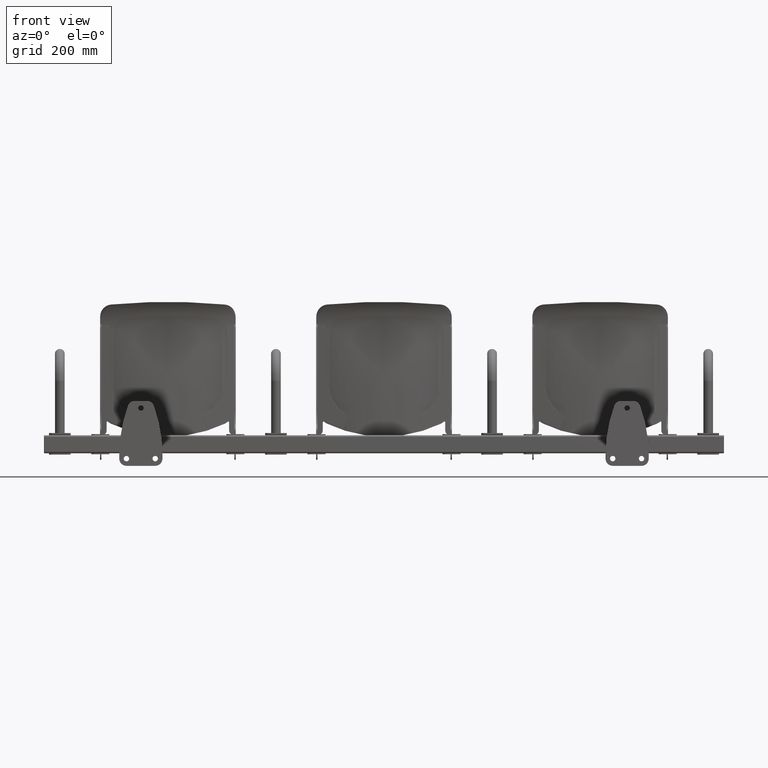
[diagram: clean part render]
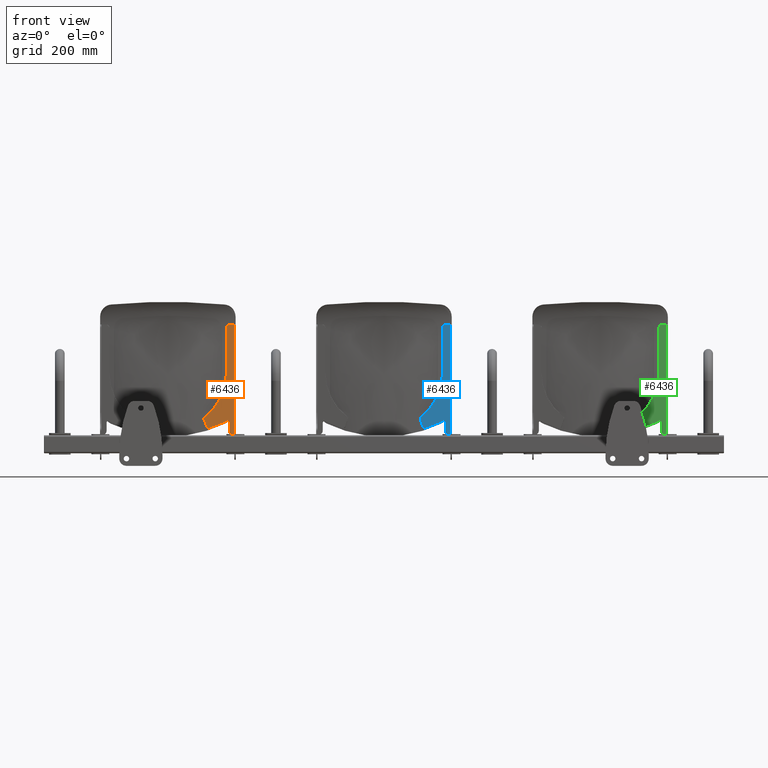
[diagram: same view with three faces highlighted in distinct colors, each labeled with its STEP entity id]
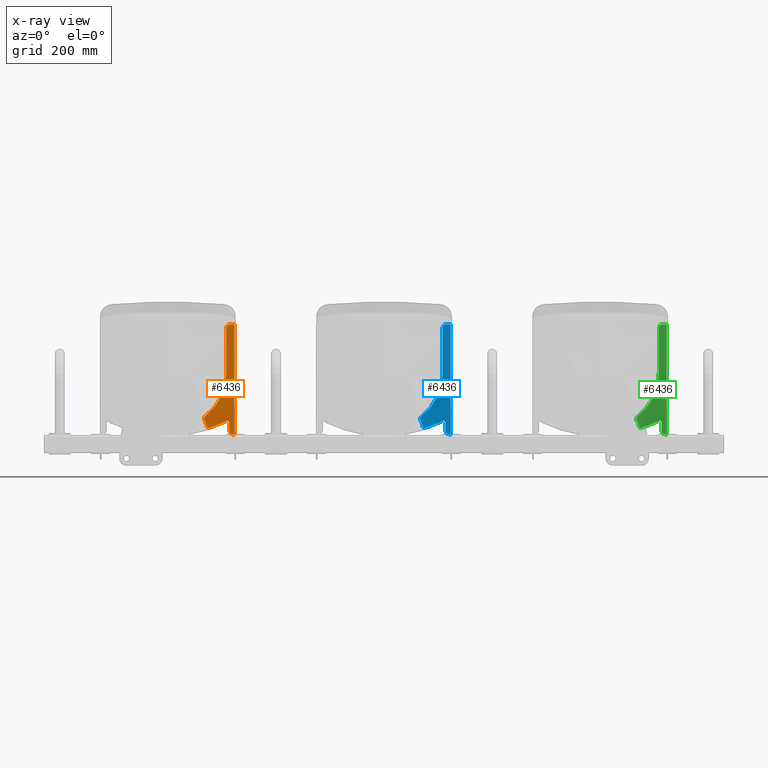
[diagram: x-ray of the same camera — body ghosted, the three highlighted faces saturated]
A machine part, front view with three faces highlighted in distinct colors.
The next image is the same camera in x-ray (body ghosted, the three faces saturated) — at least one of them is partly hidden behind the body in this view.
Their STEP definitions:

[orange] entity #6436 — the highlighted planar face has unit normal (0.0958, -0.9954, 0).
#1328 = CIRCLE ( 'NONE', #16411, 6.000000000000000900 ) ;
#1329 = VECTOR ( 'NONE', #3980, 1000.000000000000000 ) ;
#1330 = LINE ( 'NONE', #3975, #1329 ) ;
#1331 = CIRCLE ( 'NONE', #16412, 76.00311442922111400 ) ;
#1332 = LINE ( 'NONE', #3991, #1338 ) ;
#1333 = LINE ( 'NONE', #3982, #1335 ) ;
#1334 = CIRCLE ( 'NONE', #16413, 6.000000000000000900 ) ;
#1335 = VECTOR ( 'NONE', #3981, 1000.000000000000000 ) ;
#1337 = CIRCLE ( 'NONE', #16414, 10.00000000000000200 ) ;
#1338 = VECTOR ( 'NONE', #3986, 1000.000000000000100 ) ;
#1339 = CIRCLE ( 'NONE', #16415, 8.845926968541688100 ) ;
#1882 = FACE_OUTER_BOUND ( 'NONE', #8939, .T. ) ;
#3043 = PLANE ( 'NONE',  #6840 ) ;
#3044 = CARTESIAN_POINT ( 'NONE',  ( 188.5000000000000000, 17.99999999999997200, 24.00000000000002100 ) ) ;
#3049 = DIRECTION ( 'NONE',  ( 0.09584575252022049800, -0.9953961983671791900, -0.0000000000000000000 ) ) ;
#3050 = DIRECTION ( 'NONE',  ( -0.9953961983671790700, -0.09584575252022048400, 0.0000000000000000000 ) ) ;
#3530 = CARTESIAN_POINT ( 'NONE',  ( 184.5000000000000000, 17.61484380720990100, 24.28409515809885400 ) ) ;
#3531 = CARTESIAN_POINT ( 'NONE',  ( 162.6196988424533700, 15.50801043447423700, 194.4461557886543800 ) ) ;
#3606 = CARTESIAN_POINT ( 'NONE',  ( 103.6808314258597100, 9.832842989089716200, 75.04162505709574300 ) ) ;
#3614 = CARTESIAN_POINT ( 'NONE',  ( 101.1457261246025200, 9.588740112551144900, 64.02176152993709500 ) ) ;
#3632 = CARTESIAN_POINT ( 'NONE',  ( 172.5736608261252300, 16.46646795967645400, 330.0000000000000000 ) ) ;
#3649 = CARTESIAN_POINT ( 'NONE',  ( 107.3372407343402400, 10.18491516122392100, 46.72695777418037000 ) ) ;
#3667 = CARTESIAN_POINT ( 'NONE',  ( 170.5828684293811400, 16.27477645463507400, 34.57884802471576100 ) ) ;
#3671 = CARTESIAN_POINT ( 'NONE',  ( 179.8724822042540600, 17.16926452314029900, 24.60114541509068100 ) ) ;
#3965 = CARTESIAN_POINT ( 'NONE',  ( 129.8152838245827400, 12.34930453572654900, 47.43398999284612200 ) ) ;
#3966 = CARTESIAN_POINT ( 'NONE',  ( 120.2635138761707800, 11.42957369879214400, 44.07372596261146200 ) ) ;
#3969 = CARTESIAN_POINT ( 'NONE',  ( 156.8707370378486100, 14.95444837418486600, 58.88155333963863600 ) ) ;
#3970 = CARTESIAN_POINT ( 'NONE',  ( 115.0096950149533100, 10.92368848124325400, 42.35488176124789600 ) ) ;
#3971 = CARTESIAN_POINT ( 'NONE',  ( 143.5008606733279400, 13.66707570452644700, 52.87726956516083000 ) ) ;
#3972 = CARTESIAN_POINT ( 'NONE',  ( 151.9526490212497000, 14.48089036011484900, 56.60374593299583500 ) ) ;
#3973 = CARTESIAN_POINT ( 'NONE',  ( 156.1380335318006900, 14.88389705097651500, 58.54220238807209900 ) ) ;
#3974 = CARTESIAN_POINT ( 'NONE',  ( 156.1380335318006900, 14.88389705097651500, 58.54220238807209900 ) ) ;
#3975 = CARTESIAN_POINT ( 'NONE',  ( 170.5828684293788300, 16.27477645463485300, 24.00000000000395800 ) ) ;
#3976 = CARTESIAN_POINT ( 'NONE',  ( 158.3153326412890500, 15.09354710987049100, 59.62261421516016900 ) ) ;
#3977 = CARTESIAN_POINT ( 'NONE',  ( 159.9432653440214600, 15.25029920034623200, 60.63089457596554200 ) ) ;
#3978 = CARTESIAN_POINT ( 'NONE',  ( 160.8630157402461400, 15.33886109057801600, 61.27424498524444400 ) ) ;
#3979 = CARTESIAN_POINT ( 'NONE',  ( 161.1214335537769400, 15.36374389588017800, 61.46111508508808900 ) ) ;
#3980 = DIRECTION ( 'NONE',  ( -2.176688216276588300E-013, -2.095912365680630600E-014, -1.000000000000000000 ) ) ;
#3981 = DIRECTION ( 'NONE',  ( -2.750060156608368600E-015, -2.648006749657840600E-016, -1.000000000000000000 ) ) ;
#3982 = CARTESIAN_POINT ( 'NONE',  ( 162.6196988424526400, 15.50801043447417100, 24.00000000000009600 ) ) ;
#3983 = CARTESIAN_POINT ( 'NONE',  ( 164.6104912391828300, 15.69970193951421000, 56.59145301664560200 ) ) ;
#3984 = DIRECTION ( 'NONE',  ( 0.09584575252022049800, -0.9953961983671791900, -0.0000000000000000000 ) ) ;
#3985 = DIRECTION ( 'NONE',  ( -0.9953961983671791900, -0.09584575252022037300, 2.312964634635742300E-015 ) ) ;
#3986 = DIRECTION ( 'NONE',  ( -0.9953961983671790700, -0.09584575252022037300, 0.0000000000000000000 ) ) ;
#3987 = CARTESIAN_POINT ( 'NONE',  ( 33.57478584118886300, 3.082398586848760700, 29.84122683389196600 ) ) ;
#3988 = DIRECTION ( 'NONE',  ( -0.09584575252022049800, 0.9953961983671791900, 0.0000000000000000000 ) ) ;
#3989 = DIRECTION ( 'NONE',  ( -0.9953961983671791900, -0.09584575252022049800, 0.0000000000000000000 ) ) ;
#3991 = CARTESIAN_POINT ( 'NONE',  ( 184.4999999999999400, 17.61484380720982700, 330.0000000000000000 ) ) ;
#3992 = CARTESIAN_POINT ( 'NONE',  ( 113.1603538091479600, 10.74561717674377800, 48.05998716912812800 ) ) ;
#3993 = DIRECTION ( 'NONE',  ( -0.09584575252022049800, 0.9953961983671791900, 0.0000000000000000000 ) ) ;
#3994 = DIRECTION ( 'NONE',  ( -0.9953961983671791900, -0.09584575252022037300, 0.0000000000000000000 ) ) ;
#3995 = CARTESIAN_POINT ( 'NONE',  ( 182.9675193682065500, 17.46728270579328400, 24.39113088401540400 ) ) ;
#3996 = CARTESIAN_POINT ( 'NONE',  ( 181.4249707208374500, 17.31875216473971300, 24.49681722962390400 ) ) ;
#3998 = CARTESIAN_POINT ( 'NONE',  ( 180.5368304130530200, 17.23323397983728700, 34.57884802471357200 ) ) ;
#3999 = DIRECTION ( 'NONE',  ( -0.09584575252022049800, 0.9953961983671791900, 0.0000000000000000000 ) ) ;
#4000 = DIRECTION ( 'NONE',  ( -0.9953961983671793000, -0.09584575252022038700, 0.0000000000000000000 ) ) ;
#4001 = CARTESIAN_POINT ( 'NONE',  ( 179.8724822042540600, 17.16926452314029900, 24.60114541509068100 ) ) ;
#4002 = CARTESIAN_POINT ( 'NONE',  ( 184.5000000000000000, 17.61484380720990100, 24.28409515809885400 ) ) ;
#4005 = CARTESIAN_POINT ( 'NONE',  ( 109.0102407228748100, 10.34600673775440400, 68.00000000000000000 ) ) ;
#4006 = DIRECTION ( 'NONE',  ( 0.09584575252022049800, -0.9953961983671791900, -0.0000000000000000000 ) ) ;
#4007 = DIRECTION ( 'NONE',  ( -0.9953961983671790700, -0.09584575252022055300, 0.0000000000000000000 ) ) ;
#5196 = EDGE_CURVE ( 'NONE', #7212, #7299, #5851, .T. ) ;
#5197 = EDGE_CURVE ( 'NONE', #7299, #7252, #5861, .T. ) ;
#5198 = EDGE_CURVE ( 'NONE', #7208, #13494, #1330, .T. ) ;
#5199 = EDGE_CURVE ( 'NONE', #7208, #7252, #1328, .T. ) ;
#5200 = EDGE_CURVE ( 'NONE', #13441, #13476, #1331, .T. ) ;
#5201 = EDGE_CURVE ( 'NONE', #7267, #13358, #1333, .T. ) ;
#5202 = EDGE_CURVE ( 'NONE', #7212, #13476, #1334, .T. ) ;
#5203 = EDGE_CURVE ( 'NONE', #7255, #13459, #1332, .T. ) ;
#5204 = EDGE_CURVE ( 'NONE', #13498, #13494, #1337, .T. ) ;
#5205 = EDGE_CURVE ( 'NONE', #13498, #13357, #5841, .T. ) ;
#5206 = EDGE_CURVE ( 'NONE', #13433, #13441, #1339, .T. ) ;
#5841 =( BOUNDED_CURVE ( )  B_SPLINE_CURVE ( 3, ( #4001, #3996, #3995, #4002 ),
 .UNSPECIFIED., .F., .T. ) 
 B_SPLINE_CURVE_WITH_KNOTS ( ( 4, 4 ),
 ( 5.321707578490328500, 5.339936677496162100 ),
 .UNSPECIFIED. ) 
 CURVE ( )  GEOMETRIC_REPRESENTATION_ITEM ( )  RATIONAL_B_SPLINE_CURVE ( ( 1.000000000000000000, 0.9999723085208263000, 0.9999723085208263000, 1.000000000000000000 ) ) 
 REPRESENTATION_ITEM ( '' )  );
#5851 = B_SPLINE_CURVE_WITH_KNOTS ( 'NONE', 3,
 ( #3970, #3966, #3965, #3971, #3972, #3973 ),
 .UNSPECIFIED., .F., .F.,
 ( 4, 1, 1, 4 ),
 ( 0.03439965888567477600, 0.08637565307253473900, 0.1295634796088021000, 0.1727513061450694800 ),
 .UNSPECIFIED. ) ;
#5861 = B_SPLINE_CURVE_WITH_KNOTS ( 'NONE', 3,
 ( #3974, #3969, #3976, #3977, #3978, #3979 ),
 .UNSPECIFIED., .F., .F.,
 ( 4, 1, 1, 4 ),
 ( 0.0000000000000000000, 0.09120023808047161800, 0.1824004761609432600, 0.2185380446200216000 ),
 .UNSPECIFIED. ) ;
#5986 = ORIENTED_EDGE ( 'NONE', *, *, #5201, .T. ) ;
#5987 = ORIENTED_EDGE ( 'NONE', *, *, #7802, .T. ) ;
#5988 = ORIENTED_EDGE ( 'NONE', *, *, #5206, .T. ) ;
#5989 = ORIENTED_EDGE ( 'NONE', *, *, #5200, .T. ) ;
#5990 = ORIENTED_EDGE ( 'NONE', *, *, #5202, .F. ) ;
#5991 = ORIENTED_EDGE ( 'NONE', *, *, #5196, .T. ) ;
#5992 = ORIENTED_EDGE ( 'NONE', *, *, #5197, .T. ) ;
#6306 = ORIENTED_EDGE ( 'NONE', *, *, #5199, .F. ) ;
#6308 = ORIENTED_EDGE ( 'NONE', *, *, #5198, .T. ) ;
#6310 = ORIENTED_EDGE ( 'NONE', *, *, #5204, .F. ) ;
#6312 = ORIENTED_EDGE ( 'NONE', *, *, #5205, .T. ) ;
#6313 = ORIENTED_EDGE ( 'NONE', *, *, #7526, .T. ) ;
#6315 = ORIENTED_EDGE ( 'NONE', *, *, #5203, .T. ) ;
#6317 = ORIENTED_EDGE ( 'NONE', *, *, #6895, .F. ) ;
#6436 = ADVANCED_FACE ( 'NONE', ( #1882 ), #3043, .T. ) ;
#6840 = AXIS2_PLACEMENT_3D ( 'NONE', #3044, #3049, #3050 ) ;
#6895 = EDGE_CURVE ( 'NONE', #7267, #13459, #13192, .T. ) ;
#7208 = VERTEX_POINT ( 'NONE', #10487 ) ;
#7212 = VERTEX_POINT ( 'NONE', #10494 ) ;
#7252 = VERTEX_POINT ( 'NONE', #10532 ) ;
#7255 = VERTEX_POINT ( 'NONE', #10535 ) ;
#7267 = VERTEX_POINT ( 'NONE', #10547 ) ;
#7299 = VERTEX_POINT ( 'NONE', #10579 ) ;
#7526 = EDGE_CURVE ( 'NONE', #13357, #7255, #11661, .T. ) ;
#7802 = EDGE_CURVE ( 'NONE', #13358, #13433, #11723, .T. ) ;
#8939 = EDGE_LOOP ( 'NONE', ( #5986, #5987, #5988, #5989, #5990, #5991, #5992, #6306, #6308, #6310, #6312, #6313, #6315, #6317 ) ) ;
#9917 = CARTESIAN_POINT ( 'NONE',  ( 172.5736608261252300, 16.46646795967645000, 320.0000000000000000 ) ) ;
#9919 = DIRECTION ( 'NONE',  ( -0.09584575252022049800, 0.9953961983671791900, 0.0000000000000000000 ) ) ;
#9921 = DIRECTION ( 'NONE',  ( -0.9953961983671790700, -0.09584575252022054000, 0.0000000000000000000 ) ) ;
#10487 = CARTESIAN_POINT ( 'NONE',  ( 170.5828684293859400, 16.27477645463553600, 56.59145301664429400 ) ) ;
#10494 = CARTESIAN_POINT ( 'NONE',  ( 115.0096950149533100, 10.92368848124325400, 42.35488176124789600 ) ) ;
#10532 = CARTESIAN_POINT ( 'NONE',  ( 161.1214335537769400, 15.36374389588017800, 61.46111508508808900 ) ) ;
#10535 = CARTESIAN_POINT ( 'NONE',  ( 184.4999999999999400, 17.61484380720982700, 330.0000000000000000 ) ) ;
#10547 = CARTESIAN_POINT ( 'NONE',  ( 162.6196988424534600, 15.50801043447424900, 320.0000000000000000 ) ) ;
#10579 = CARTESIAN_POINT ( 'NONE',  ( 156.1380335318006900, 14.88389705097651500, 58.54220238807209900 ) ) ;
#10672 = CARTESIAN_POINT ( 'NONE',  ( 184.5000000000000000, 17.61484380720990100, 42.09000911109884400 ) ) ;
#10673 = DIRECTION ( 'NONE',  ( 0.0000000000000000000, 0.0000000000000000000, 1.000000000000000000 ) ) ;
#10772 = CARTESIAN_POINT ( 'NONE',  ( 13.31026908737649200, 1.131147556441169900, 194.4461557886543800 ) ) ;
#10773 = DIRECTION ( 'NONE',  ( -0.09584575252022049800, 0.9953961983671791900, 0.0000000000000000000 ) ) ;
#10774 = DIRECTION ( 'NONE',  ( -0.9953961983671791900, -0.09584575252022049800, 0.0000000000000000000 ) ) ;
#11661 = LINE ( 'NONE', #10672, #11664 ) ;
#11664 = VECTOR ( 'NONE', #10673, 1000.000000000000000 ) ;
#11723 = CIRCLE ( 'NONE', #11985, 150.0000000000000300 ) ;
#11903 = AXIS2_PLACEMENT_3D ( 'NONE', #9917, #9919, #9921 ) ;
#11985 = AXIS2_PLACEMENT_3D ( 'NONE', #10772, #10773, #10774 ) ;
#13192 = CIRCLE ( 'NONE', #11903, 10.00000000000000400 ) ;
#13357 = VERTEX_POINT ( 'NONE', #3530 ) ;
#13358 = VERTEX_POINT ( 'NONE', #3531 ) ;
#13433 = VERTEX_POINT ( 'NONE', #3606 ) ;
#13441 = VERTEX_POINT ( 'NONE', #3614 ) ;
#13459 = VERTEX_POINT ( 'NONE', #3632 ) ;
#13476 = VERTEX_POINT ( 'NONE', #3649 ) ;
#13494 = VERTEX_POINT ( 'NONE', #3667 ) ;
#13498 = VERTEX_POINT ( 'NONE', #3671 ) ;
#16411 = AXIS2_PLACEMENT_3D ( 'NONE', #3983, #3984, #3985 ) ;
#16412 = AXIS2_PLACEMENT_3D ( 'NONE', #3987, #3988, #3989 ) ;
#16413 = AXIS2_PLACEMENT_3D ( 'NONE', #3992, #3993, #3994 ) ;
#16414 = AXIS2_PLACEMENT_3D ( 'NONE', #3998, #3999, #4000 ) ;
#16415 = AXIS2_PLACEMENT_3D ( 'NONE', #4005, #4006, #4007 ) ;

[blue] entity #6436 — the highlighted planar face has unit normal (0.0958, -0.9954, 0).
#1328 = CIRCLE ( 'NONE', #16411, 6.000000000000000900 ) ;
#1329 = VECTOR ( 'NONE', #3980, 1000.000000000000000 ) ;
#1330 = LINE ( 'NONE', #3975, #1329 ) ;
#1331 = CIRCLE ( 'NONE', #16412, 76.00311442922111400 ) ;
#1332 = LINE ( 'NONE', #3991, #1338 ) ;
#1333 = LINE ( 'NONE', #3982, #1335 ) ;
#1334 = CIRCLE ( 'NONE', #16413, 6.000000000000000900 ) ;
#1335 = VECTOR ( 'NONE', #3981, 1000.000000000000000 ) ;
#1337 = CIRCLE ( 'NONE', #16414, 10.00000000000000200 ) ;
#1338 = VECTOR ( 'NONE', #3986, 1000.000000000000100 ) ;
#1339 = CIRCLE ( 'NONE', #16415, 8.845926968541688100 ) ;
#1882 = FACE_OUTER_BOUND ( 'NONE', #8939, .T. ) ;
#3043 = PLANE ( 'NONE',  #6840 ) ;
#3044 = CARTESIAN_POINT ( 'NONE',  ( 188.5000000000000000, 17.99999999999997200, 24.00000000000002100 ) ) ;
#3049 = DIRECTION ( 'NONE',  ( 0.09584575252022049800, -0.9953961983671791900, -0.0000000000000000000 ) ) ;
#3050 = DIRECTION ( 'NONE',  ( -0.9953961983671790700, -0.09584575252022048400, 0.0000000000000000000 ) ) ;
#3530 = CARTESIAN_POINT ( 'NONE',  ( 184.5000000000000000, 17.61484380720990100, 24.28409515809885400 ) ) ;
#3531 = CARTESIAN_POINT ( 'NONE',  ( 162.6196988424533700, 15.50801043447423700, 194.4461557886543800 ) ) ;
#3606 = CARTESIAN_POINT ( 'NONE',  ( 103.6808314258597100, 9.832842989089716200, 75.04162505709574300 ) ) ;
#3614 = CARTESIAN_POINT ( 'NONE',  ( 101.1457261246025200, 9.588740112551144900, 64.02176152993709500 ) ) ;
#3632 = CARTESIAN_POINT ( 'NONE',  ( 172.5736608261252300, 16.46646795967645400, 330.0000000000000000 ) ) ;
#3649 = CARTESIAN_POINT ( 'NONE',  ( 107.3372407343402400, 10.18491516122392100, 46.72695777418037000 ) ) ;
#3667 = CARTESIAN_POINT ( 'NONE',  ( 170.5828684293811400, 16.27477645463507400, 34.57884802471576100 ) ) ;
#3671 = CARTESIAN_POINT ( 'NONE',  ( 179.8724822042540600, 17.16926452314029900, 24.60114541509068100 ) ) ;
#3965 = CARTESIAN_POINT ( 'NONE',  ( 129.8152838245827400, 12.34930453572654900, 47.43398999284612200 ) ) ;
#3966 = CARTESIAN_POINT ( 'NONE',  ( 120.2635138761707800, 11.42957369879214400, 44.07372596261146200 ) ) ;
#3969 = CARTESIAN_POINT ( 'NONE',  ( 156.8707370378486100, 14.95444837418486600, 58.88155333963863600 ) ) ;
#3970 = CARTESIAN_POINT ( 'NONE',  ( 115.0096950149533100, 10.92368848124325400, 42.35488176124789600 ) ) ;
#3971 = CARTESIAN_POINT ( 'NONE',  ( 143.5008606733279400, 13.66707570452644700, 52.87726956516083000 ) ) ;
#3972 = CARTESIAN_POINT ( 'NONE',  ( 151.9526490212497000, 14.48089036011484900, 56.60374593299583500 ) ) ;
#3973 = CARTESIAN_POINT ( 'NONE',  ( 156.1380335318006900, 14.88389705097651500, 58.54220238807209900 ) ) ;
#3974 = CARTESIAN_POINT ( 'NONE',  ( 156.1380335318006900, 14.88389705097651500, 58.54220238807209900 ) ) ;
#3975 = CARTESIAN_POINT ( 'NONE',  ( 170.5828684293788300, 16.27477645463485300, 24.00000000000395800 ) ) ;
#3976 = CARTESIAN_POINT ( 'NONE',  ( 158.3153326412890500, 15.09354710987049100, 59.62261421516016900 ) ) ;
#3977 = CARTESIAN_POINT ( 'NONE',  ( 159.9432653440214600, 15.25029920034623200, 60.63089457596554200 ) ) ;
#3978 = CARTESIAN_POINT ( 'NONE',  ( 160.8630157402461400, 15.33886109057801600, 61.27424498524444400 ) ) ;
#3979 = CARTESIAN_POINT ( 'NONE',  ( 161.1214335537769400, 15.36374389588017800, 61.46111508508808900 ) ) ;
#3980 = DIRECTION ( 'NONE',  ( -2.176688216276588300E-013, -2.095912365680630600E-014, -1.000000000000000000 ) ) ;
#3981 = DIRECTION ( 'NONE',  ( -2.750060156608368600E-015, -2.648006749657840600E-016, -1.000000000000000000 ) ) ;
#3982 = CARTESIAN_POINT ( 'NONE',  ( 162.6196988424526400, 15.50801043447417100, 24.00000000000009600 ) ) ;
#3983 = CARTESIAN_POINT ( 'NONE',  ( 164.6104912391828300, 15.69970193951421000, 56.59145301664560200 ) ) ;
#3984 = DIRECTION ( 'NONE',  ( 0.09584575252022049800, -0.9953961983671791900, -0.0000000000000000000 ) ) ;
#3985 = DIRECTION ( 'NONE',  ( -0.9953961983671791900, -0.09584575252022037300, 2.312964634635742300E-015 ) ) ;
#3986 = DIRECTION ( 'NONE',  ( -0.9953961983671790700, -0.09584575252022037300, 0.0000000000000000000 ) ) ;
#3987 = CARTESIAN_POINT ( 'NONE',  ( 33.57478584118886300, 3.082398586848760700, 29.84122683389196600 ) ) ;
#3988 = DIRECTION ( 'NONE',  ( -0.09584575252022049800, 0.9953961983671791900, 0.0000000000000000000 ) ) ;
#3989 = DIRECTION ( 'NONE',  ( -0.9953961983671791900, -0.09584575252022049800, 0.0000000000000000000 ) ) ;
#3991 = CARTESIAN_POINT ( 'NONE',  ( 184.4999999999999400, 17.61484380720982700, 330.0000000000000000 ) ) ;
#3992 = CARTESIAN_POINT ( 'NONE',  ( 113.1603538091479600, 10.74561717674377800, 48.05998716912812800 ) ) ;
#3993 = DIRECTION ( 'NONE',  ( -0.09584575252022049800, 0.9953961983671791900, 0.0000000000000000000 ) ) ;
#3994 = DIRECTION ( 'NONE',  ( -0.9953961983671791900, -0.09584575252022037300, 0.0000000000000000000 ) ) ;
#3995 = CARTESIAN_POINT ( 'NONE',  ( 182.9675193682065500, 17.46728270579328400, 24.39113088401540400 ) ) ;
#3996 = CARTESIAN_POINT ( 'NONE',  ( 181.4249707208374500, 17.31875216473971300, 24.49681722962390400 ) ) ;
#3998 = CARTESIAN_POINT ( 'NONE',  ( 180.5368304130530200, 17.23323397983728700, 34.57884802471357200 ) ) ;
#3999 = DIRECTION ( 'NONE',  ( -0.09584575252022049800, 0.9953961983671791900, 0.0000000000000000000 ) ) ;
#4000 = DIRECTION ( 'NONE',  ( -0.9953961983671793000, -0.09584575252022038700, 0.0000000000000000000 ) ) ;
#4001 = CARTESIAN_POINT ( 'NONE',  ( 179.8724822042540600, 17.16926452314029900, 24.60114541509068100 ) ) ;
#4002 = CARTESIAN_POINT ( 'NONE',  ( 184.5000000000000000, 17.61484380720990100, 24.28409515809885400 ) ) ;
#4005 = CARTESIAN_POINT ( 'NONE',  ( 109.0102407228748100, 10.34600673775440400, 68.00000000000000000 ) ) ;
#4006 = DIRECTION ( 'NONE',  ( 0.09584575252022049800, -0.9953961983671791900, -0.0000000000000000000 ) ) ;
#4007 = DIRECTION ( 'NONE',  ( -0.9953961983671790700, -0.09584575252022055300, 0.0000000000000000000 ) ) ;
#5196 = EDGE_CURVE ( 'NONE', #7212, #7299, #5851, .T. ) ;
#5197 = EDGE_CURVE ( 'NONE', #7299, #7252, #5861, .T. ) ;
#5198 = EDGE_CURVE ( 'NONE', #7208, #13494, #1330, .T. ) ;
#5199 = EDGE_CURVE ( 'NONE', #7208, #7252, #1328, .T. ) ;
#5200 = EDGE_CURVE ( 'NONE', #13441, #13476, #1331, .T. ) ;
#5201 = EDGE_CURVE ( 'NONE', #7267, #13358, #1333, .T. ) ;
#5202 = EDGE_CURVE ( 'NONE', #7212, #13476, #1334, .T. ) ;
#5203 = EDGE_CURVE ( 'NONE', #7255, #13459, #1332, .T. ) ;
#5204 = EDGE_CURVE ( 'NONE', #13498, #13494, #1337, .T. ) ;
#5205 = EDGE_CURVE ( 'NONE', #13498, #13357, #5841, .T. ) ;
#5206 = EDGE_CURVE ( 'NONE', #13433, #13441, #1339, .T. ) ;
#5841 =( BOUNDED_CURVE ( )  B_SPLINE_CURVE ( 3, ( #4001, #3996, #3995, #4002 ),
 .UNSPECIFIED., .F., .T. ) 
 B_SPLINE_CURVE_WITH_KNOTS ( ( 4, 4 ),
 ( 5.321707578490328500, 5.339936677496162100 ),
 .UNSPECIFIED. ) 
 CURVE ( )  GEOMETRIC_REPRESENTATION_ITEM ( )  RATIONAL_B_SPLINE_CURVE ( ( 1.000000000000000000, 0.9999723085208263000, 0.9999723085208263000, 1.000000000000000000 ) ) 
 REPRESENTATION_ITEM ( '' )  );
#5851 = B_SPLINE_CURVE_WITH_KNOTS ( 'NONE', 3,
 ( #3970, #3966, #3965, #3971, #3972, #3973 ),
 .UNSPECIFIED., .F., .F.,
 ( 4, 1, 1, 4 ),
 ( 0.03439965888567477600, 0.08637565307253473900, 0.1295634796088021000, 0.1727513061450694800 ),
 .UNSPECIFIED. ) ;
#5861 = B_SPLINE_CURVE_WITH_KNOTS ( 'NONE', 3,
 ( #3974, #3969, #3976, #3977, #3978, #3979 ),
 .UNSPECIFIED., .F., .F.,
 ( 4, 1, 1, 4 ),
 ( 0.0000000000000000000, 0.09120023808047161800, 0.1824004761609432600, 0.2185380446200216000 ),
 .UNSPECIFIED. ) ;
#5986 = ORIENTED_EDGE ( 'NONE', *, *, #5201, .T. ) ;
#5987 = ORIENTED_EDGE ( 'NONE', *, *, #7802, .T. ) ;
#5988 = ORIENTED_EDGE ( 'NONE', *, *, #5206, .T. ) ;
#5989 = ORIENTED_EDGE ( 'NONE', *, *, #5200, .T. ) ;
#5990 = ORIENTED_EDGE ( 'NONE', *, *, #5202, .F. ) ;
#5991 = ORIENTED_EDGE ( 'NONE', *, *, #5196, .T. ) ;
#5992 = ORIENTED_EDGE ( 'NONE', *, *, #5197, .T. ) ;
#6306 = ORIENTED_EDGE ( 'NONE', *, *, #5199, .F. ) ;
#6308 = ORIENTED_EDGE ( 'NONE', *, *, #5198, .T. ) ;
#6310 = ORIENTED_EDGE ( 'NONE', *, *, #5204, .F. ) ;
#6312 = ORIENTED_EDGE ( 'NONE', *, *, #5205, .T. ) ;
#6313 = ORIENTED_EDGE ( 'NONE', *, *, #7526, .T. ) ;
#6315 = ORIENTED_EDGE ( 'NONE', *, *, #5203, .T. ) ;
#6317 = ORIENTED_EDGE ( 'NONE', *, *, #6895, .F. ) ;
#6436 = ADVANCED_FACE ( 'NONE', ( #1882 ), #3043, .T. ) ;
#6840 = AXIS2_PLACEMENT_3D ( 'NONE', #3044, #3049, #3050 ) ;
#6895 = EDGE_CURVE ( 'NONE', #7267, #13459, #13192, .T. ) ;
#7208 = VERTEX_POINT ( 'NONE', #10487 ) ;
#7212 = VERTEX_POINT ( 'NONE', #10494 ) ;
#7252 = VERTEX_POINT ( 'NONE', #10532 ) ;
#7255 = VERTEX_POINT ( 'NONE', #10535 ) ;
#7267 = VERTEX_POINT ( 'NONE', #10547 ) ;
#7299 = VERTEX_POINT ( 'NONE', #10579 ) ;
#7526 = EDGE_CURVE ( 'NONE', #13357, #7255, #11661, .T. ) ;
#7802 = EDGE_CURVE ( 'NONE', #13358, #13433, #11723, .T. ) ;
#8939 = EDGE_LOOP ( 'NONE', ( #5986, #5987, #5988, #5989, #5990, #5991, #5992, #6306, #6308, #6310, #6312, #6313, #6315, #6317 ) ) ;
#9917 = CARTESIAN_POINT ( 'NONE',  ( 172.5736608261252300, 16.46646795967645000, 320.0000000000000000 ) ) ;
#9919 = DIRECTION ( 'NONE',  ( -0.09584575252022049800, 0.9953961983671791900, 0.0000000000000000000 ) ) ;
#9921 = DIRECTION ( 'NONE',  ( -0.9953961983671790700, -0.09584575252022054000, 0.0000000000000000000 ) ) ;
#10487 = CARTESIAN_POINT ( 'NONE',  ( 170.5828684293859400, 16.27477645463553600, 56.59145301664429400 ) ) ;
#10494 = CARTESIAN_POINT ( 'NONE',  ( 115.0096950149533100, 10.92368848124325400, 42.35488176124789600 ) ) ;
#10532 = CARTESIAN_POINT ( 'NONE',  ( 161.1214335537769400, 15.36374389588017800, 61.46111508508808900 ) ) ;
#10535 = CARTESIAN_POINT ( 'NONE',  ( 184.4999999999999400, 17.61484380720982700, 330.0000000000000000 ) ) ;
#10547 = CARTESIAN_POINT ( 'NONE',  ( 162.6196988424534600, 15.50801043447424900, 320.0000000000000000 ) ) ;
#10579 = CARTESIAN_POINT ( 'NONE',  ( 156.1380335318006900, 14.88389705097651500, 58.54220238807209900 ) ) ;
#10672 = CARTESIAN_POINT ( 'NONE',  ( 184.5000000000000000, 17.61484380720990100, 42.09000911109884400 ) ) ;
#10673 = DIRECTION ( 'NONE',  ( 0.0000000000000000000, 0.0000000000000000000, 1.000000000000000000 ) ) ;
#10772 = CARTESIAN_POINT ( 'NONE',  ( 13.31026908737649200, 1.131147556441169900, 194.4461557886543800 ) ) ;
#10773 = DIRECTION ( 'NONE',  ( -0.09584575252022049800, 0.9953961983671791900, 0.0000000000000000000 ) ) ;
#10774 = DIRECTION ( 'NONE',  ( -0.9953961983671791900, -0.09584575252022049800, 0.0000000000000000000 ) ) ;
#11661 = LINE ( 'NONE', #10672, #11664 ) ;
#11664 = VECTOR ( 'NONE', #10673, 1000.000000000000000 ) ;
#11723 = CIRCLE ( 'NONE', #11985, 150.0000000000000300 ) ;
#11903 = AXIS2_PLACEMENT_3D ( 'NONE', #9917, #9919, #9921 ) ;
#11985 = AXIS2_PLACEMENT_3D ( 'NONE', #10772, #10773, #10774 ) ;
#13192 = CIRCLE ( 'NONE', #11903, 10.00000000000000400 ) ;
#13357 = VERTEX_POINT ( 'NONE', #3530 ) ;
#13358 = VERTEX_POINT ( 'NONE', #3531 ) ;
#13433 = VERTEX_POINT ( 'NONE', #3606 ) ;
#13441 = VERTEX_POINT ( 'NONE', #3614 ) ;
#13459 = VERTEX_POINT ( 'NONE', #3632 ) ;
#13476 = VERTEX_POINT ( 'NONE', #3649 ) ;
#13494 = VERTEX_POINT ( 'NONE', #3667 ) ;
#13498 = VERTEX_POINT ( 'NONE', #3671 ) ;
#16411 = AXIS2_PLACEMENT_3D ( 'NONE', #3983, #3984, #3985 ) ;
#16412 = AXIS2_PLACEMENT_3D ( 'NONE', #3987, #3988, #3989 ) ;
#16413 = AXIS2_PLACEMENT_3D ( 'NONE', #3992, #3993, #3994 ) ;
#16414 = AXIS2_PLACEMENT_3D ( 'NONE', #3998, #3999, #4000 ) ;
#16415 = AXIS2_PLACEMENT_3D ( 'NONE', #4005, #4006, #4007 ) ;

[green] entity #6436 — the highlighted planar face has unit normal (0.0958, -0.9954, 0).
#1328 = CIRCLE ( 'NONE', #16411, 6.000000000000000900 ) ;
#1329 = VECTOR ( 'NONE', #3980, 1000.000000000000000 ) ;
#1330 = LINE ( 'NONE', #3975, #1329 ) ;
#1331 = CIRCLE ( 'NONE', #16412, 76.00311442922111400 ) ;
#1332 = LINE ( 'NONE', #3991, #1338 ) ;
#1333 = LINE ( 'NONE', #3982, #1335 ) ;
#1334 = CIRCLE ( 'NONE', #16413, 6.000000000000000900 ) ;
#1335 = VECTOR ( 'NONE', #3981, 1000.000000000000000 ) ;
#1337 = CIRCLE ( 'NONE', #16414, 10.00000000000000200 ) ;
#1338 = VECTOR ( 'NONE', #3986, 1000.000000000000100 ) ;
#1339 = CIRCLE ( 'NONE', #16415, 8.845926968541688100 ) ;
#1882 = FACE_OUTER_BOUND ( 'NONE', #8939, .T. ) ;
#3043 = PLANE ( 'NONE',  #6840 ) ;
#3044 = CARTESIAN_POINT ( 'NONE',  ( 188.5000000000000000, 17.99999999999997200, 24.00000000000002100 ) ) ;
#3049 = DIRECTION ( 'NONE',  ( 0.09584575252022049800, -0.9953961983671791900, -0.0000000000000000000 ) ) ;
#3050 = DIRECTION ( 'NONE',  ( -0.9953961983671790700, -0.09584575252022048400, 0.0000000000000000000 ) ) ;
#3530 = CARTESIAN_POINT ( 'NONE',  ( 184.5000000000000000, 17.61484380720990100, 24.28409515809885400 ) ) ;
#3531 = CARTESIAN_POINT ( 'NONE',  ( 162.6196988424533700, 15.50801043447423700, 194.4461557886543800 ) ) ;
#3606 = CARTESIAN_POINT ( 'NONE',  ( 103.6808314258597100, 9.832842989089716200, 75.04162505709574300 ) ) ;
#3614 = CARTESIAN_POINT ( 'NONE',  ( 101.1457261246025200, 9.588740112551144900, 64.02176152993709500 ) ) ;
#3632 = CARTESIAN_POINT ( 'NONE',  ( 172.5736608261252300, 16.46646795967645400, 330.0000000000000000 ) ) ;
#3649 = CARTESIAN_POINT ( 'NONE',  ( 107.3372407343402400, 10.18491516122392100, 46.72695777418037000 ) ) ;
#3667 = CARTESIAN_POINT ( 'NONE',  ( 170.5828684293811400, 16.27477645463507400, 34.57884802471576100 ) ) ;
#3671 = CARTESIAN_POINT ( 'NONE',  ( 179.8724822042540600, 17.16926452314029900, 24.60114541509068100 ) ) ;
#3965 = CARTESIAN_POINT ( 'NONE',  ( 129.8152838245827400, 12.34930453572654900, 47.43398999284612200 ) ) ;
#3966 = CARTESIAN_POINT ( 'NONE',  ( 120.2635138761707800, 11.42957369879214400, 44.07372596261146200 ) ) ;
#3969 = CARTESIAN_POINT ( 'NONE',  ( 156.8707370378486100, 14.95444837418486600, 58.88155333963863600 ) ) ;
#3970 = CARTESIAN_POINT ( 'NONE',  ( 115.0096950149533100, 10.92368848124325400, 42.35488176124789600 ) ) ;
#3971 = CARTESIAN_POINT ( 'NONE',  ( 143.5008606733279400, 13.66707570452644700, 52.87726956516083000 ) ) ;
#3972 = CARTESIAN_POINT ( 'NONE',  ( 151.9526490212497000, 14.48089036011484900, 56.60374593299583500 ) ) ;
#3973 = CARTESIAN_POINT ( 'NONE',  ( 156.1380335318006900, 14.88389705097651500, 58.54220238807209900 ) ) ;
#3974 = CARTESIAN_POINT ( 'NONE',  ( 156.1380335318006900, 14.88389705097651500, 58.54220238807209900 ) ) ;
#3975 = CARTESIAN_POINT ( 'NONE',  ( 170.5828684293788300, 16.27477645463485300, 24.00000000000395800 ) ) ;
#3976 = CARTESIAN_POINT ( 'NONE',  ( 158.3153326412890500, 15.09354710987049100, 59.62261421516016900 ) ) ;
#3977 = CARTESIAN_POINT ( 'NONE',  ( 159.9432653440214600, 15.25029920034623200, 60.63089457596554200 ) ) ;
#3978 = CARTESIAN_POINT ( 'NONE',  ( 160.8630157402461400, 15.33886109057801600, 61.27424498524444400 ) ) ;
#3979 = CARTESIAN_POINT ( 'NONE',  ( 161.1214335537769400, 15.36374389588017800, 61.46111508508808900 ) ) ;
#3980 = DIRECTION ( 'NONE',  ( -2.176688216276588300E-013, -2.095912365680630600E-014, -1.000000000000000000 ) ) ;
#3981 = DIRECTION ( 'NONE',  ( -2.750060156608368600E-015, -2.648006749657840600E-016, -1.000000000000000000 ) ) ;
#3982 = CARTESIAN_POINT ( 'NONE',  ( 162.6196988424526400, 15.50801043447417100, 24.00000000000009600 ) ) ;
#3983 = CARTESIAN_POINT ( 'NONE',  ( 164.6104912391828300, 15.69970193951421000, 56.59145301664560200 ) ) ;
#3984 = DIRECTION ( 'NONE',  ( 0.09584575252022049800, -0.9953961983671791900, -0.0000000000000000000 ) ) ;
#3985 = DIRECTION ( 'NONE',  ( -0.9953961983671791900, -0.09584575252022037300, 2.312964634635742300E-015 ) ) ;
#3986 = DIRECTION ( 'NONE',  ( -0.9953961983671790700, -0.09584575252022037300, 0.0000000000000000000 ) ) ;
#3987 = CARTESIAN_POINT ( 'NONE',  ( 33.57478584118886300, 3.082398586848760700, 29.84122683389196600 ) ) ;
#3988 = DIRECTION ( 'NONE',  ( -0.09584575252022049800, 0.9953961983671791900, 0.0000000000000000000 ) ) ;
#3989 = DIRECTION ( 'NONE',  ( -0.9953961983671791900, -0.09584575252022049800, 0.0000000000000000000 ) ) ;
#3991 = CARTESIAN_POINT ( 'NONE',  ( 184.4999999999999400, 17.61484380720982700, 330.0000000000000000 ) ) ;
#3992 = CARTESIAN_POINT ( 'NONE',  ( 113.1603538091479600, 10.74561717674377800, 48.05998716912812800 ) ) ;
#3993 = DIRECTION ( 'NONE',  ( -0.09584575252022049800, 0.9953961983671791900, 0.0000000000000000000 ) ) ;
#3994 = DIRECTION ( 'NONE',  ( -0.9953961983671791900, -0.09584575252022037300, 0.0000000000000000000 ) ) ;
#3995 = CARTESIAN_POINT ( 'NONE',  ( 182.9675193682065500, 17.46728270579328400, 24.39113088401540400 ) ) ;
#3996 = CARTESIAN_POINT ( 'NONE',  ( 181.4249707208374500, 17.31875216473971300, 24.49681722962390400 ) ) ;
#3998 = CARTESIAN_POINT ( 'NONE',  ( 180.5368304130530200, 17.23323397983728700, 34.57884802471357200 ) ) ;
#3999 = DIRECTION ( 'NONE',  ( -0.09584575252022049800, 0.9953961983671791900, 0.0000000000000000000 ) ) ;
#4000 = DIRECTION ( 'NONE',  ( -0.9953961983671793000, -0.09584575252022038700, 0.0000000000000000000 ) ) ;
#4001 = CARTESIAN_POINT ( 'NONE',  ( 179.8724822042540600, 17.16926452314029900, 24.60114541509068100 ) ) ;
#4002 = CARTESIAN_POINT ( 'NONE',  ( 184.5000000000000000, 17.61484380720990100, 24.28409515809885400 ) ) ;
#4005 = CARTESIAN_POINT ( 'NONE',  ( 109.0102407228748100, 10.34600673775440400, 68.00000000000000000 ) ) ;
#4006 = DIRECTION ( 'NONE',  ( 0.09584575252022049800, -0.9953961983671791900, -0.0000000000000000000 ) ) ;
#4007 = DIRECTION ( 'NONE',  ( -0.9953961983671790700, -0.09584575252022055300, 0.0000000000000000000 ) ) ;
#5196 = EDGE_CURVE ( 'NONE', #7212, #7299, #5851, .T. ) ;
#5197 = EDGE_CURVE ( 'NONE', #7299, #7252, #5861, .T. ) ;
#5198 = EDGE_CURVE ( 'NONE', #7208, #13494, #1330, .T. ) ;
#5199 = EDGE_CURVE ( 'NONE', #7208, #7252, #1328, .T. ) ;
#5200 = EDGE_CURVE ( 'NONE', #13441, #13476, #1331, .T. ) ;
#5201 = EDGE_CURVE ( 'NONE', #7267, #13358, #1333, .T. ) ;
#5202 = EDGE_CURVE ( 'NONE', #7212, #13476, #1334, .T. ) ;
#5203 = EDGE_CURVE ( 'NONE', #7255, #13459, #1332, .T. ) ;
#5204 = EDGE_CURVE ( 'NONE', #13498, #13494, #1337, .T. ) ;
#5205 = EDGE_CURVE ( 'NONE', #13498, #13357, #5841, .T. ) ;
#5206 = EDGE_CURVE ( 'NONE', #13433, #13441, #1339, .T. ) ;
#5841 =( BOUNDED_CURVE ( )  B_SPLINE_CURVE ( 3, ( #4001, #3996, #3995, #4002 ),
 .UNSPECIFIED., .F., .T. ) 
 B_SPLINE_CURVE_WITH_KNOTS ( ( 4, 4 ),
 ( 5.321707578490328500, 5.339936677496162100 ),
 .UNSPECIFIED. ) 
 CURVE ( )  GEOMETRIC_REPRESENTATION_ITEM ( )  RATIONAL_B_SPLINE_CURVE ( ( 1.000000000000000000, 0.9999723085208263000, 0.9999723085208263000, 1.000000000000000000 ) ) 
 REPRESENTATION_ITEM ( '' )  );
#5851 = B_SPLINE_CURVE_WITH_KNOTS ( 'NONE', 3,
 ( #3970, #3966, #3965, #3971, #3972, #3973 ),
 .UNSPECIFIED., .F., .F.,
 ( 4, 1, 1, 4 ),
 ( 0.03439965888567477600, 0.08637565307253473900, 0.1295634796088021000, 0.1727513061450694800 ),
 .UNSPECIFIED. ) ;
#5861 = B_SPLINE_CURVE_WITH_KNOTS ( 'NONE', 3,
 ( #3974, #3969, #3976, #3977, #3978, #3979 ),
 .UNSPECIFIED., .F., .F.,
 ( 4, 1, 1, 4 ),
 ( 0.0000000000000000000, 0.09120023808047161800, 0.1824004761609432600, 0.2185380446200216000 ),
 .UNSPECIFIED. ) ;
#5986 = ORIENTED_EDGE ( 'NONE', *, *, #5201, .T. ) ;
#5987 = ORIENTED_EDGE ( 'NONE', *, *, #7802, .T. ) ;
#5988 = ORIENTED_EDGE ( 'NONE', *, *, #5206, .T. ) ;
#5989 = ORIENTED_EDGE ( 'NONE', *, *, #5200, .T. ) ;
#5990 = ORIENTED_EDGE ( 'NONE', *, *, #5202, .F. ) ;
#5991 = ORIENTED_EDGE ( 'NONE', *, *, #5196, .T. ) ;
#5992 = ORIENTED_EDGE ( 'NONE', *, *, #5197, .T. ) ;
#6306 = ORIENTED_EDGE ( 'NONE', *, *, #5199, .F. ) ;
#6308 = ORIENTED_EDGE ( 'NONE', *, *, #5198, .T. ) ;
#6310 = ORIENTED_EDGE ( 'NONE', *, *, #5204, .F. ) ;
#6312 = ORIENTED_EDGE ( 'NONE', *, *, #5205, .T. ) ;
#6313 = ORIENTED_EDGE ( 'NONE', *, *, #7526, .T. ) ;
#6315 = ORIENTED_EDGE ( 'NONE', *, *, #5203, .T. ) ;
#6317 = ORIENTED_EDGE ( 'NONE', *, *, #6895, .F. ) ;
#6436 = ADVANCED_FACE ( 'NONE', ( #1882 ), #3043, .T. ) ;
#6840 = AXIS2_PLACEMENT_3D ( 'NONE', #3044, #3049, #3050 ) ;
#6895 = EDGE_CURVE ( 'NONE', #7267, #13459, #13192, .T. ) ;
#7208 = VERTEX_POINT ( 'NONE', #10487 ) ;
#7212 = VERTEX_POINT ( 'NONE', #10494 ) ;
#7252 = VERTEX_POINT ( 'NONE', #10532 ) ;
#7255 = VERTEX_POINT ( 'NONE', #10535 ) ;
#7267 = VERTEX_POINT ( 'NONE', #10547 ) ;
#7299 = VERTEX_POINT ( 'NONE', #10579 ) ;
#7526 = EDGE_CURVE ( 'NONE', #13357, #7255, #11661, .T. ) ;
#7802 = EDGE_CURVE ( 'NONE', #13358, #13433, #11723, .T. ) ;
#8939 = EDGE_LOOP ( 'NONE', ( #5986, #5987, #5988, #5989, #5990, #5991, #5992, #6306, #6308, #6310, #6312, #6313, #6315, #6317 ) ) ;
#9917 = CARTESIAN_POINT ( 'NONE',  ( 172.5736608261252300, 16.46646795967645000, 320.0000000000000000 ) ) ;
#9919 = DIRECTION ( 'NONE',  ( -0.09584575252022049800, 0.9953961983671791900, 0.0000000000000000000 ) ) ;
#9921 = DIRECTION ( 'NONE',  ( -0.9953961983671790700, -0.09584575252022054000, 0.0000000000000000000 ) ) ;
#10487 = CARTESIAN_POINT ( 'NONE',  ( 170.5828684293859400, 16.27477645463553600, 56.59145301664429400 ) ) ;
#10494 = CARTESIAN_POINT ( 'NONE',  ( 115.0096950149533100, 10.92368848124325400, 42.35488176124789600 ) ) ;
#10532 = CARTESIAN_POINT ( 'NONE',  ( 161.1214335537769400, 15.36374389588017800, 61.46111508508808900 ) ) ;
#10535 = CARTESIAN_POINT ( 'NONE',  ( 184.4999999999999400, 17.61484380720982700, 330.0000000000000000 ) ) ;
#10547 = CARTESIAN_POINT ( 'NONE',  ( 162.6196988424534600, 15.50801043447424900, 320.0000000000000000 ) ) ;
#10579 = CARTESIAN_POINT ( 'NONE',  ( 156.1380335318006900, 14.88389705097651500, 58.54220238807209900 ) ) ;
#10672 = CARTESIAN_POINT ( 'NONE',  ( 184.5000000000000000, 17.61484380720990100, 42.09000911109884400 ) ) ;
#10673 = DIRECTION ( 'NONE',  ( 0.0000000000000000000, 0.0000000000000000000, 1.000000000000000000 ) ) ;
#10772 = CARTESIAN_POINT ( 'NONE',  ( 13.31026908737649200, 1.131147556441169900, 194.4461557886543800 ) ) ;
#10773 = DIRECTION ( 'NONE',  ( -0.09584575252022049800, 0.9953961983671791900, 0.0000000000000000000 ) ) ;
#10774 = DIRECTION ( 'NONE',  ( -0.9953961983671791900, -0.09584575252022049800, 0.0000000000000000000 ) ) ;
#11661 = LINE ( 'NONE', #10672, #11664 ) ;
#11664 = VECTOR ( 'NONE', #10673, 1000.000000000000000 ) ;
#11723 = CIRCLE ( 'NONE', #11985, 150.0000000000000300 ) ;
#11903 = AXIS2_PLACEMENT_3D ( 'NONE', #9917, #9919, #9921 ) ;
#11985 = AXIS2_PLACEMENT_3D ( 'NONE', #10772, #10773, #10774 ) ;
#13192 = CIRCLE ( 'NONE', #11903, 10.00000000000000400 ) ;
#13357 = VERTEX_POINT ( 'NONE', #3530 ) ;
#13358 = VERTEX_POINT ( 'NONE', #3531 ) ;
#13433 = VERTEX_POINT ( 'NONE', #3606 ) ;
#13441 = VERTEX_POINT ( 'NONE', #3614 ) ;
#13459 = VERTEX_POINT ( 'NONE', #3632 ) ;
#13476 = VERTEX_POINT ( 'NONE', #3649 ) ;
#13494 = VERTEX_POINT ( 'NONE', #3667 ) ;
#13498 = VERTEX_POINT ( 'NONE', #3671 ) ;
#16411 = AXIS2_PLACEMENT_3D ( 'NONE', #3983, #3984, #3985 ) ;
#16412 = AXIS2_PLACEMENT_3D ( 'NONE', #3987, #3988, #3989 ) ;
#16413 = AXIS2_PLACEMENT_3D ( 'NONE', #3992, #3993, #3994 ) ;
#16414 = AXIS2_PLACEMENT_3D ( 'NONE', #3998, #3999, #4000 ) ;
#16415 = AXIS2_PLACEMENT_3D ( 'NONE', #4005, #4006, #4007 ) ;